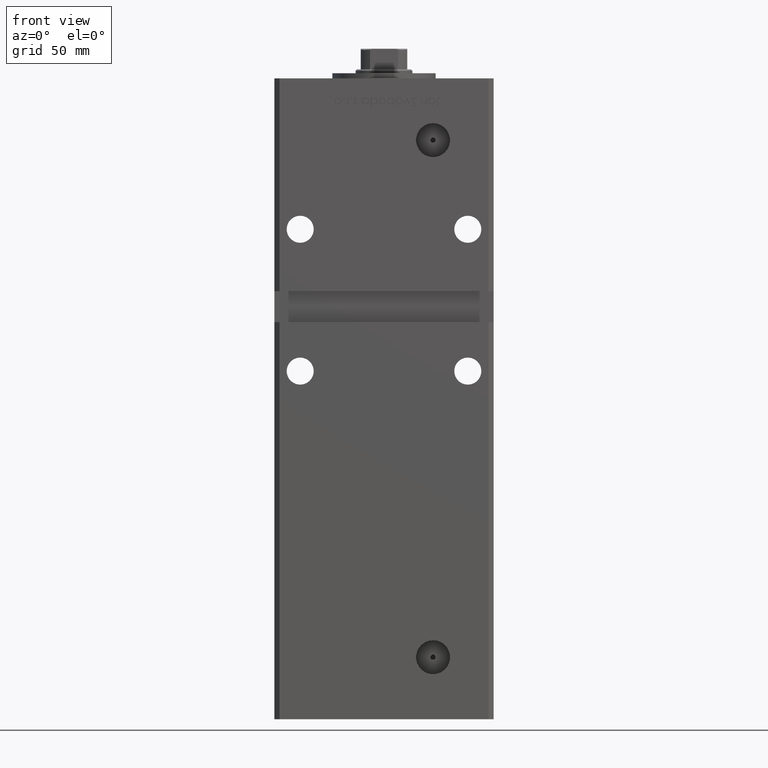
[diagram: clean part render]
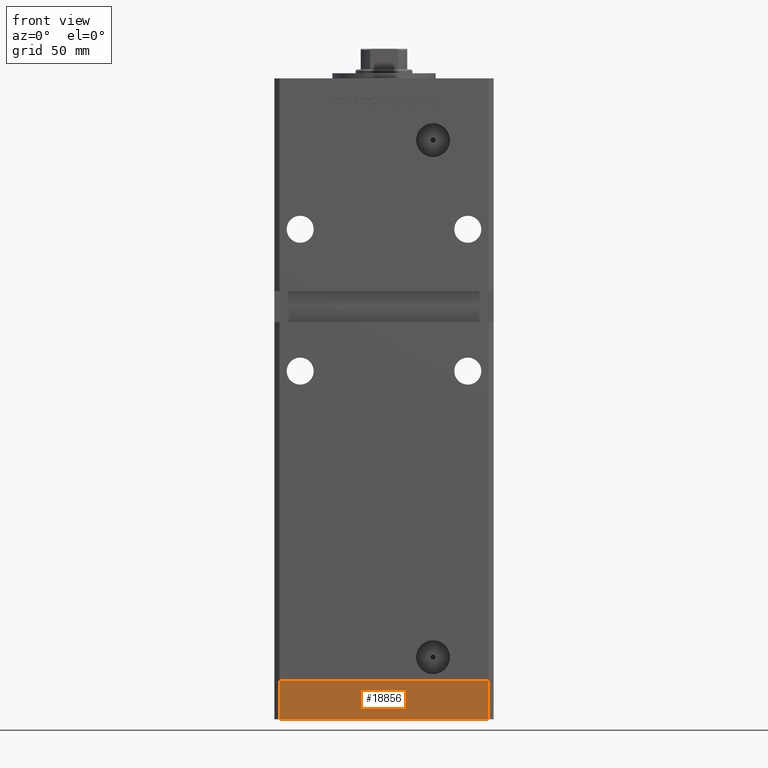
[diagram: same view with one face highlighted and labeled with its STEP entity id]
A machine part, front view. The second image highlights one B-rep face of the part: STEP entity #18856.
In plain terms, the highlighted planar face has unit normal (0, -1, -0).
Its self-contained STEP definition (entity closure, byte-faithful):
#3553 = EDGE_LOOP ( 'NONE', ( #53047, #24178, #19125, #36868 ) ) ;
#5457 = CARTESIAN_POINT ( 'NONE',  ( -40.49999999999999289, -37.50000000000002132, -15.00000000000000000 ) ) ;
#7050 = CARTESIAN_POINT ( 'NONE',  ( -40.49999999999999289, -37.50000000000002132, -15.00000000000000000 ) ) ;
#8656 = CARTESIAN_POINT ( 'NONE',  ( -40.49999999999999289, -37.50000000000002132, 0.000000000000000000 ) ) ;
#10657 = EDGE_CURVE ( 'NONE', #47604, #48269, #27998, .T. ) ;
#10964 = CARTESIAN_POINT ( 'NONE',  ( 40.50000000000000000, -37.50000000000000711, 0.000000000000000000 ) ) ;
#12411 = LINE ( 'NONE', #8656, #13912 ) ;
#13216 = VECTOR ( 'NONE', #42721, 1000.000000000000000 ) ;
#13912 = VECTOR ( 'NONE', #16700, 1000.000000000000000 ) ;
#16053 = CARTESIAN_POINT ( 'NONE',  ( -40.49999999999999289, -37.50000000000002132, -15.00000000000000000 ) ) ;
#16700 = DIRECTION ( 'NONE',  ( 1.000000000000000000, 1.713307136767217096E-16, 0.000000000000000000 ) ) ;
#17936 = AXIS2_PLACEMENT_3D ( 'NONE', #5457, #46068, #50642 ) ;
#18856 = ADVANCED_FACE ( 'NONE', ( #25877 ), #41767, .T. ) ;
#19125 = ORIENTED_EDGE ( 'NONE', *, *, #10657, .T. ) ;
#22656 = VECTOR ( 'NONE', #39181, 1000.000000000000000 ) ;
#24178 = ORIENTED_EDGE ( 'NONE', *, *, #45451, .F. ) ;
#25877 = FACE_OUTER_BOUND ( 'NONE', #3553, .T. ) ;
#27998 = LINE ( 'NONE', #7050, #49436 ) ;
#33927 = CARTESIAN_POINT ( 'NONE',  ( -40.49999999999999289, -37.50000000000002132, 0.000000000000000000 ) ) ;
#33990 = EDGE_CURVE ( 'NONE', #34034, #34130, #12411, .T. ) ;
#34034 = VERTEX_POINT ( 'NONE', #33927 ) ;
#34130 = VERTEX_POINT ( 'NONE', #10964 ) ;
#34138 = CARTESIAN_POINT ( 'NONE',  ( -40.49999999999999289, -37.50000000000002132, -15.00000000000000000 ) ) ;
#36868 = ORIENTED_EDGE ( 'NONE', *, *, #39715, .T. ) ;
#38907 = LINE ( 'NONE', #42678, #22656 ) ;
#39181 = DIRECTION ( 'NONE',  ( 0.000000000000000000, 0.000000000000000000, 1.000000000000000000 ) ) ;
#39493 = LINE ( 'NONE', #34138, #13216 ) ;
#39715 = EDGE_CURVE ( 'NONE', #48269, #34130, #38907, .T. ) ;
#41767 = PLANE ( 'NONE',  #17936 ) ;
#42678 = CARTESIAN_POINT ( 'NONE',  ( 40.50000000000000000, -37.50000000000000711, -15.00000000000000000 ) ) ;
#42721 = DIRECTION ( 'NONE',  ( 0.000000000000000000, 0.000000000000000000, 1.000000000000000000 ) ) ;
#45451 = EDGE_CURVE ( 'NONE', #47604, #34034, #39493, .T. ) ;
#46068 = DIRECTION ( 'NONE',  ( 1.713307136767217096E-16, -1.000000000000000000, 0.000000000000000000 ) ) ;
#47604 = VERTEX_POINT ( 'NONE', #16053 ) ;
#48269 = VERTEX_POINT ( 'NONE', #52673 ) ;
#49436 = VECTOR ( 'NONE', #52502, 1000.000000000000000 ) ;
#50642 = DIRECTION ( 'NONE',  ( 1.000000000000000000, 1.713307136767217096E-16, 0.000000000000000000 ) ) ;
#52502 = DIRECTION ( 'NONE',  ( 1.000000000000000000, 1.713307136767217096E-16, 0.000000000000000000 ) ) ;
#52673 = CARTESIAN_POINT ( 'NONE',  ( 40.50000000000000000, -37.50000000000000711, -15.00000000000000000 ) ) ;
#53047 = ORIENTED_EDGE ( 'NONE', *, *, #33990, .F. ) ;